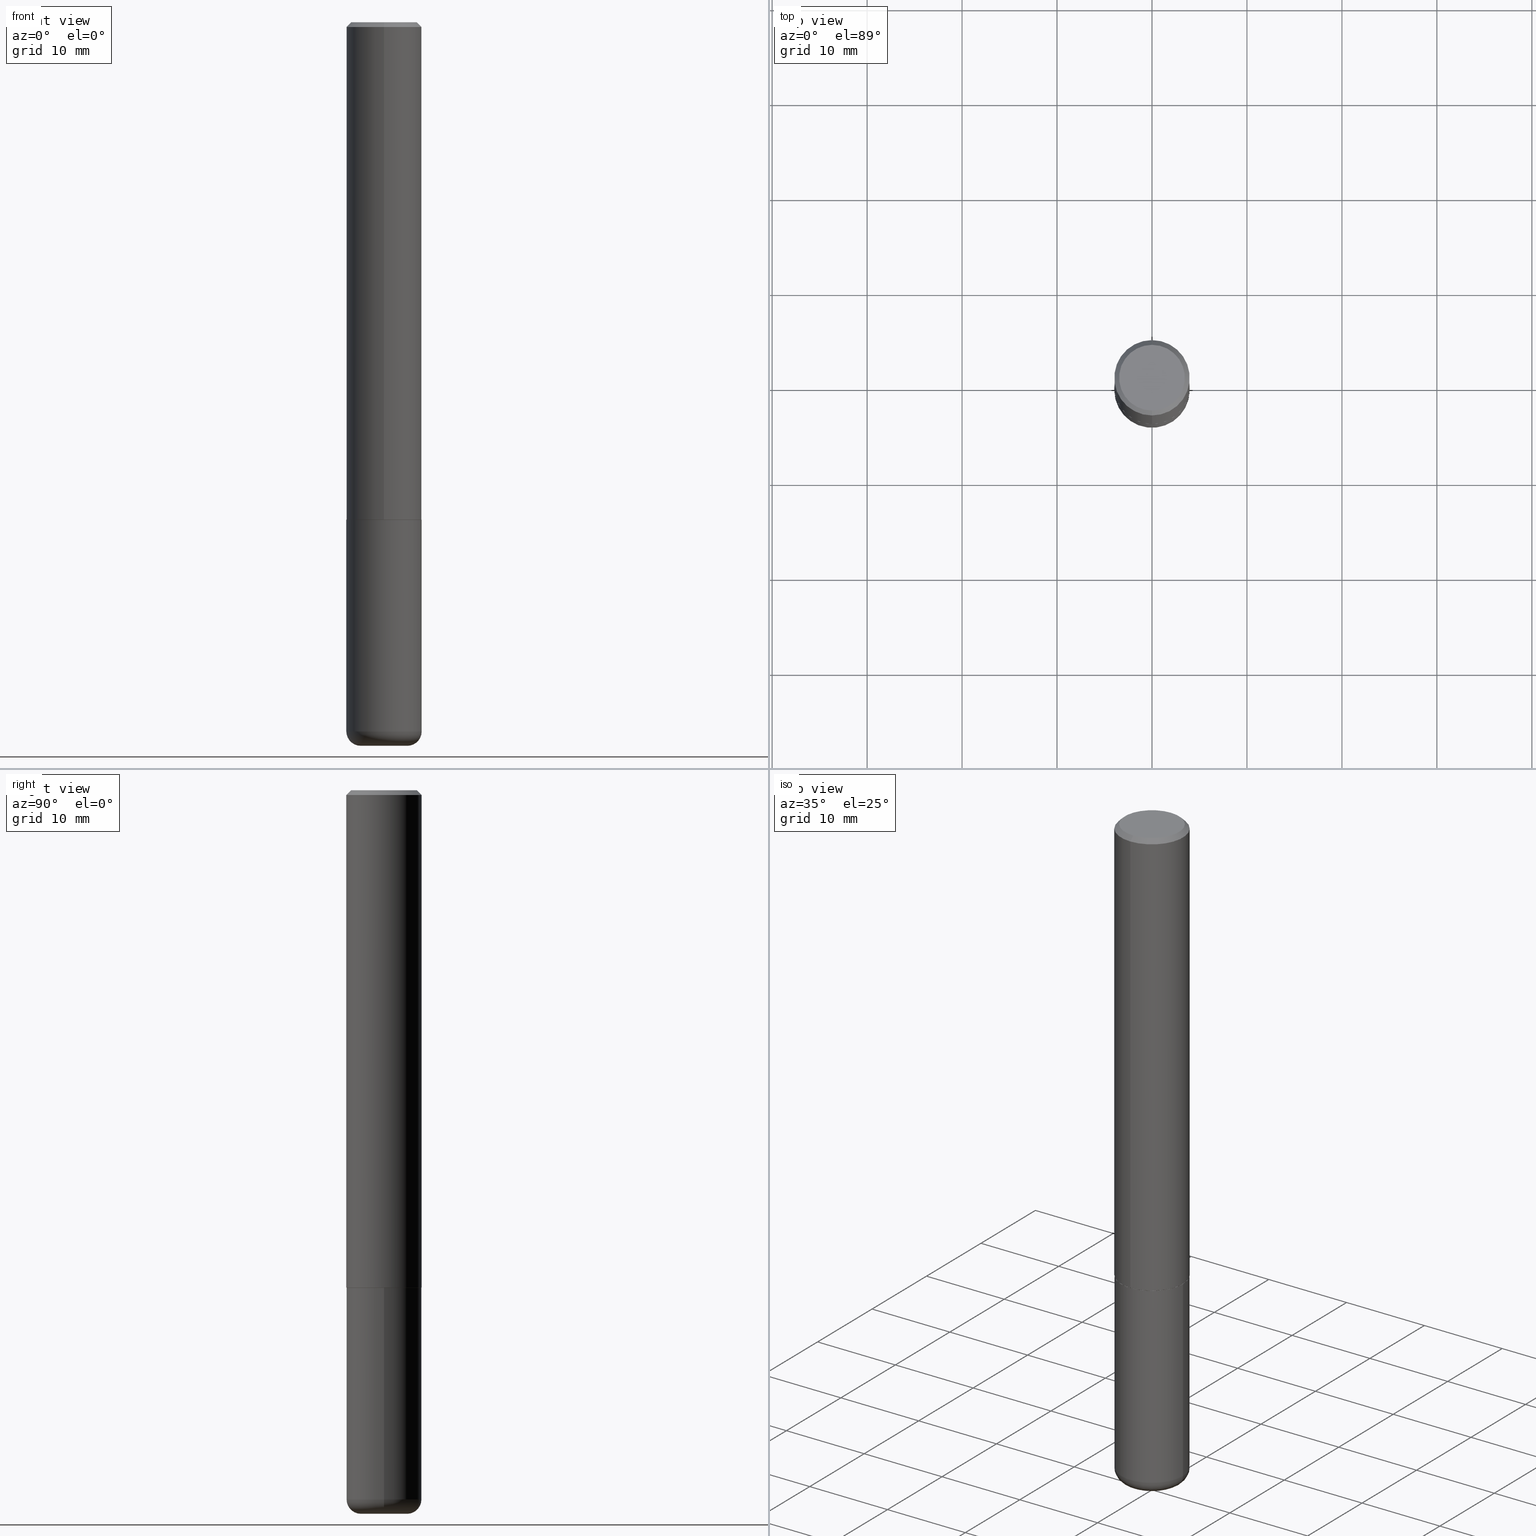
[diagram: canonical four-view strip — front | top / right | iso, engineering-drawing reading convention]
A machine part, canonical four-view strip (front | top / right | iso — engineering-drawing reading convention). The complete STEP part file that produces these views, byte-faithful:
ISO-10303-21;
HEADER;
FILE_DESCRIPTION (( 'STEP AP203' ),
    '1' );
FILE_NAME ('37464.STEP',
    '2024-03-02T01:57:05',
    ( '' ),
    ( '' ),
    'SwSTEP 2.0',
    'SolidWorks 2023',
    '' );
FILE_SCHEMA (( 'CONFIG_CONTROL_DESIGN' ));
ENDSEC;

DATA;
#1 = ORIENTED_EDGE ( 'NONE', *, *, #174, .F. ) ;
#2 = AXIS2_PLACEMENT_3D ( 'NONE', #51, #376, #232 ) ;
#3 = DIRECTION ( 'NONE',  ( -6.982962677686265922E-15, -1.000000000000000000, 3.519288880726909138E-15 ) ) ;
#4 = ORIENTED_EDGE ( 'NONE', *, *, #391, .F. ) ;
#5 = FACE_OUTER_BOUND ( 'NONE', #182, .T. ) ;
#6 = DIRECTION ( 'NONE',  ( -1.000000000000000000, 7.105427357600997914E-15, 0.000000000000000000 ) ) ;
#7 = ORIENTED_EDGE ( 'NONE', *, *, #170, .F. ) ;
#8 = PERSON ( 'UNSPECIFIED', 'UNSPECIFIED', 'UNSPECIFIED', ('UNSPECIFIED'), ('UNSPECIFIED'), ('UNSPECIFIED') ) ;
#9 = VECTOR ( 'NONE', #258, 39.37007874015748143 ) ;
#10 = EDGE_CURVE ( 'NONE', #139, #119, #46, .T. ) ;
#11 = EDGE_LOOP ( 'NONE', ( #386, #346 ) ) ;
#12 = LINE ( 'NONE', #205, #225 ) ;
#13 = APPLICATION_CONTEXT ( 'configuration controlled 3d designs of mechanical parts and assemblies' ) ;
#14 = DIRECTION ( 'NONE',  ( 1.000000000000000000, 0.000000000000000000, 0.000000000000000000 ) ) ;
#15 = ORIENTED_EDGE ( 'NONE', *, *, #368, .F. ) ;
#16 = VECTOR ( 'NONE', #265, 39.37007874015748854 ) ;
#17 = ORIENTED_EDGE ( 'NONE', *, *, #269, .F. ) ;
#18 = PLANE ( 'NONE',  #230 ) ;
#19 = AXIS2_PLACEMENT_3D ( 'NONE', #67, #316, #116 ) ;
#20 = DIRECTION ( 'NONE',  ( 1.000000000000000000, -6.982962677686274599E-15, 0.000000000000000000 ) ) ;
#21 = PERSON_AND_ORGANIZATION_ROLE ( 'design_owner' ) ;
#22 = ORIENTED_EDGE ( 'NONE', *, *, #49, .T. ) ;
#23 = ADVANCED_FACE ( 'NONE', ( #179 ), #403, .T. ) ;
#24 = PERSON_AND_ORGANIZATION_ROLE ( 'creator' ) ;
#25 = EDGE_CURVE ( 'NONE', #171, #153, #324, .T. ) ;
#26 = CARTESIAN_POINT ( 'NONE',  ( 5.040730454096381281E-29, -7.198553011844980434E-15, -2.061500000000000110 ) ) ;
#27 = PERSON_AND_ORGANIZATION ( #8, #98 ) ;
#28 = LINE ( 'NONE', #279, #48 ) ;
#29 = AXIS2_PLACEMENT_3D ( 'NONE', #335, #105, #360 ) ;
#30 = ORIENTED_EDGE ( 'NONE', *, *, #222, .F. ) ;
#31 = DIRECTION ( 'NONE',  ( -6.982962677686265922E-15, -1.000000000000000000, 3.496765431890250609E-15 ) ) ;
#32 = CARTESIAN_POINT ( 'NONE',  ( 0.1562499999999999722, -1.135604305458732800E-14, -2.940000000000000391 ) ) ;
#33 = FACE_OUTER_BOUND ( 'NONE', #81, .T. ) ;
#34 = CYLINDRICAL_SURFACE ( 'NONE', #47, 0.1562500000000000000 ) ;
#35 = CIRCLE ( 'NONE', #83, 0.05999999999999994227 ) ;
#36 = CC_DESIGN_PERSON_AND_ORGANIZATION_ASSIGNMENT ( #264, #402, ( #251 ) ) ;
#37 = DIRECTION ( 'NONE',  ( -2.445176063107630933E-29, 3.491900563592034843E-15, 1.000000000000000000 ) ) ;
#38 = DIRECTION ( 'NONE',  ( -2.445468806185136597E-29, 3.491481338843145583E-15, 1.000000000000000000 ) ) ;
#39 = PRODUCT_DEFINITION_SHAPE ( 'NONE', 'NONE',  #63 ) ;
#40 = LINE ( 'NONE', #173, #164 ) ;
#41 = AXIS2_PLACEMENT_3D ( 'NONE', #392, #129, #395 ) ;
#42 = CARTESIAN_POINT ( 'NONE',  ( 1.106670310946407312E-15, 0.1552499999999928104, -2.062500000000000888 ) ) ;
#43 = DIRECTION ( 'NONE',  ( 1.000000000000000000, -6.982962677686259611E-15, 0.000000000000000000 ) ) ;
#44 = LOCAL_TIME ( 20, 57, 5.000000000000000000, #183 ) ;
#45 = AXIS2_PLACEMENT_3D ( 'NONE', #110, #337, #43 ) ;
#46 = LINE ( 'NONE', #50, #16 ) ;
#47 = AXIS2_PLACEMENT_3D ( 'NONE', #118, #187, #160 ) ;
#48 = VECTOR ( 'NONE', #351, 39.37007874015748143 ) ;
#49 = EDGE_CURVE ( 'NONE', #153, #143, #133, .T. ) ;
#50 = CARTESIAN_POINT ( 'NONE',  ( -1.084104955710742475E-15, -0.1552500000000072156, -2.062500000000000000 ) ) ;
#51 = CARTESIAN_POINT ( 'NONE',  ( 5.040730454096381281E-29, -7.198553011844980434E-15, -2.061500000000000110 ) ) ;
#52 = PERSON_AND_ORGANIZATION_ROLE ( 'design_supplier' ) ;
#53 = ORIENTED_EDGE ( 'NONE', *, *, #56, .F. ) ;
#54 = ORIENTED_EDGE ( 'NONE', *, *, #56, .T. ) ;
#55 = ORIENTED_EDGE ( 'NONE', *, *, #235, .F. ) ;
#56 = EDGE_CURVE ( 'NONE', #371, #399, #349, .T. ) ;
#57 = AXIS2_PLACEMENT_3D ( 'NONE', #95, #37, #169 ) ;
#58 = CARTESIAN_POINT ( 'NONE',  ( 7.189678290184301639E-29, -1.026495513619884961E-14, -2.940000000000000391 ) ) ;
#59 = COORDINATED_UNIVERSAL_TIME_OFFSET ( 5, 0, .BEHIND. ) ;
#60 = DIRECTION ( 'NONE',  ( -2.445468806185136597E-29, 3.491481338843145583E-15, 1.000000000000000000 ) ) ;
#61 = AXIS2_PLACEMENT_3D ( 'NONE', #249, #38, #172 ) ;
#62 = DESIGN_CONTEXT ( 'detailed design', #13, 'design' ) ;
#63 = PRODUCT_DEFINITION ( 'UNKNOWN', '', #141, #62 ) ;
#64 = CARTESIAN_POINT ( 'NONE',  ( 4.890352126215269679E-31, -6.983801127184080238E-17, -0.02000000000000003511 ) ) ;
#65 = EDGE_CURVE ( 'NONE', #399, #371, #257, .T. ) ;
#66 = DIRECTION ( 'NONE',  ( 1.000000000000000000, -6.982962677686266711E-15, 4.876176775795936353E-29 ) ) ;
#67 = CARTESIAN_POINT ( 'NONE',  ( 4.890352126215269679E-31, -6.983801127184080238E-17, -0.02000000000000003511 ) ) ;
#68 = CONICAL_SURFACE ( 'NONE', #106, 0.1562500000000000000, 0.7853981633974469467 ) ;
#69 = VERTEX_POINT ( 'NONE', #216 ) ;
#70 = CIRCLE ( 'NONE', #176, 0.1362500000000001210 ) ;
#71 = ORIENTED_EDGE ( 'NONE', *, *, #261, .T. ) ;
#72 = LINE ( 'NONE', #175, #204 ) ;
#73 = CARTESIAN_POINT ( 'NONE',  ( 2.190428889620163364E-45, -3.128101894001013777E-31, -8.958164292007245599E-17 ) ) ;
#74 = ADVANCED_FACE ( 'NONE', ( #161 ), #68, .T. ) ;
#75 = ORIENTED_EDGE ( 'NONE', *, *, #191, .T. ) ;
#76 = AXIS2_PLACEMENT_3D ( 'NONE', #109, #377, #233 ) ;
#77 = ORIENTED_EDGE ( 'NONE', *, *, #222, .T. ) ;
#78 = COORDINATED_UNIVERSAL_TIME_OFFSET ( 5, 0, .BEHIND. ) ;
#79 = DIRECTION ( 'NONE',  ( 0.000000000000000000, 0.000000000000000000, 1.000000000000000000 ) ) ;
#80 = CLOSED_SHELL ( 'NONE', ( #198, #23, #132, #74, #287, #221, #378, #400 ) ) ;
#81 = EDGE_LOOP ( 'NONE', ( #223, #361, #53, #186 ) ) ;
#82 = PLANE ( 'NONE',  #372 ) ;
#83 = AXIS2_PLACEMENT_3D ( 'NONE', #285, #393, #6 ) ;
#84 = APPROVAL_ROLE ( '' ) ;
#85 = APPROVAL_STATUS ( 'not_yet_approved' ) ;
#86 = ORIENTED_EDGE ( 'NONE', *, *, #354, .F. ) ;
#87 = CIRCLE ( 'NONE', #341, 0.1552499999999999991 ) ;
#88 = DIRECTION ( 'NONE',  ( 6.982962677686265133E-15, 1.000000000000000000, -3.496765431890256920E-15 ) ) ;
#89 = EDGE_CURVE ( 'NONE', #143, #371, #218, .T. ) ;
#90 = CC_DESIGN_APPROVAL ( #383, ( #251 ) ) ;
#91 = APPROVAL_PERSON_ORGANIZATION ( #278, #398, #236 ) ;
#92 = SHAPE_DEFINITION_REPRESENTATION ( #39, #219 ) ;
#93 = ORIENTED_EDGE ( 'NONE', *, *, #321, .F. ) ;
#94 = ORIENTED_EDGE ( 'NONE', *, *, #290, .T. ) ;
#95 = CARTESIAN_POINT ( 'NONE',  ( 4.890352126215269679E-31, -6.983801127184080238E-17, -0.02000000000000003511 ) ) ;
#96 = CARTESIAN_POINT ( 'NONE',  ( 5.043175630159490166E-29, -7.202044912408575044E-15, -2.062500000000000444 ) ) ;
#97 = LOCAL_TIME ( 20, 57, 5.000000000000000000, #59 ) ;
#98 = ORGANIZATION ( 'UNSPECIFIED', 'UNSPECIFIED', '' ) ;
#99 = DIRECTION ( 'NONE',  ( -2.445176063107630933E-29, 3.491900563592034843E-15, 1.000000000000000000 ) ) ;
#100 = ORIENTED_EDGE ( 'NONE', *, *, #195, .T. ) ;
#101 = CARTESIAN_POINT ( 'NONE',  ( 7.189678290184301639E-29, -1.026495513619884961E-14, -2.940000000000000391 ) ) ;
#102 = CLOSED_SHELL ( 'NONE', ( #406, #310, #286, #138, #260, #339 ) ) ;
#103 = AXIS2_PLACEMENT_3D ( 'NONE', #200, #259, #327 ) ;
#104 = CC_DESIGN_PERSON_AND_ORGANIZATION_ASSIGNMENT ( #344, #52, ( #141 ) ) ;
#105 = DIRECTION ( 'NONE',  ( 2.438088387897960049E-29, -3.491481338843145188E-15, -1.000000000000000000 ) ) ;
#106 = AXIS2_PLACEMENT_3D ( 'NONE', #64, #417, #126 ) ;
#107 = EDGE_LOOP ( 'NONE', ( #342, #350, #374, #86 ) ) ;
#108 = ORIENTED_EDGE ( 'NONE', *, *, #368, .T. ) ;
#109 = CARTESIAN_POINT ( 'NONE',  ( 7.336406418555409790E-29, -1.047444401652943635E-14, -3.000000000000000444 ) ) ;
#110 = CARTESIAN_POINT ( 'NONE',  ( 7.336406418555409790E-29, -1.047444401652943635E-14, -3.000000000000000444 ) ) ;
#111 = DIMENSIONAL_EXPONENTS ( 1.000000000000000000, 0.000000000000000000, 0.000000000000000000, 0.000000000000000000, 0.000000000000000000, 0.000000000000000000, 0.000000000000000000 ) ;
#112 = ORIENTED_EDGE ( 'NONE', *, *, #242, .T. ) ;
#113 = APPLICATION_PROTOCOL_DEFINITION ( 'international standard', 'config_control_design', 1994, #369 ) ;
#114 = VECTOR ( 'NONE', #253, 39.37007874015748143 ) ;
#115 = DIRECTION ( 'NONE',  ( -2.445468806185136597E-29, 3.491481338843145583E-15, 1.000000000000000000 ) ) ;
#116 = DIRECTION ( 'NONE',  ( -6.982962677686265133E-15, -1.000000000000000000, 3.496765431890256920E-15 ) ) ;
#117 = ORIENTED_EDGE ( 'NONE', *, *, #167, .T. ) ;
#118 = CARTESIAN_POINT ( 'NONE',  ( 0.000000000000000000, 0.000000000000000000, 0.000000000000000000 ) ) ;
#119 = VERTEX_POINT ( 'NONE', #275 ) ;
#120 = ORIENTED_EDGE ( 'NONE', *, *, #353, .T. ) ;
#121 = AXIS2_PLACEMENT_3D ( 'NONE', #332, #134, #256 ) ;
#122 = CYLINDRICAL_SURFACE ( 'NONE', #211, 0.1562500000000001388 ) ;
#123 = AXIS2_PLACEMENT_3D ( 'NONE', #322, #162, #66 ) ;
#124 = DIRECTION ( 'NONE',  ( -6.982962677686265922E-15, -1.000000000000000000, 3.491900563592035238E-15 ) ) ;
#125 = APPROVAL_PERSON_ORGANIZATION ( #270, #383, #289 ) ;
#126 = DIRECTION ( 'NONE',  ( 6.982962677686265133E-15, 1.000000000000000000, -3.496765431890256920E-15 ) ) ;
#127 =( CONVERSION_BASED_UNIT ( 'INCH', #166 ) LENGTH_UNIT ( ) NAMED_UNIT ( #111 ) );
#128 = ORIENTED_EDGE ( 'NONE', *, *, #65, .F. ) ;
#129 = DIRECTION ( 'NONE',  ( -2.445468806185136597E-29, 3.491481338843145583E-15, 1.000000000000000000 ) ) ;
#130 = AXIS2_PLACEMENT_3D ( 'NONE', #158, #411, #163 ) ;
#131 = EDGE_LOOP ( 'NONE', ( #381, #100 ) ) ;
#132 = ADVANCED_FACE ( 'NONE', ( #184 ), #367, .T. ) ;
#133 = CIRCLE ( 'NONE', #408, 0.05999999999999994227 ) ;
#134 = DIRECTION ( 'NONE',  ( -2.445468806185136597E-29, 3.491481338843145583E-15, 1.000000000000000000 ) ) ;
#135 =( LENGTH_UNIT ( ) NAMED_UNIT ( * ) SI_UNIT ( $, .METRE. ) );
#136 = DIRECTION ( 'NONE',  ( -6.982962677686266711E-15, -1.000000000000000000, 3.491481338843145583E-15 ) ) ;
#137 = CONICAL_SURFACE ( 'NONE', #217, 0.1552499999999999991, 0.7853981633974141952 ) ;
#138 = ADVANCED_FACE ( 'NONE', ( #152 ), #34, .T. ) ;
#139 = VERTEX_POINT ( 'NONE', #318 ) ;
#140 = PERSON_AND_ORGANIZATION ( #8, #98 ) ;
#141 = PRODUCT_DEFINITION_FORMATION_WITH_SPECIFIED_SOURCE ( 'ANY', '', #388, .NOT_KNOWN. ) ;
#142 = DATE_TIME_ROLE ( 'creation_date' ) ;
#143 = VERTEX_POINT ( 'NONE', #32 ) ;
#144 = TOROIDAL_SURFACE ( 'NONE', #410, 0.09625000000000000222, 0.05999999999999995615 ) ;
#145 = DATE_TIME_ROLE ( 'classification_date' ) ;
#146 = ORIENTED_EDGE ( 'NONE', *, *, #354, .T. ) ;
#147 = DIRECTION ( 'NONE',  ( 1.000000000000000000, -6.982962677686269077E-15, 0.000000000000000000 ) ) ;
#148 = UNCERTAINTY_MEASURE_WITH_UNIT (LENGTH_MEASURE( 1.000000000000000082E-05 ), #127, 'distance_accuracy_value', 'NONE');
#149 = DIRECTION ( 'NONE',  ( -2.445176063107630933E-29, 3.491900563592034843E-15, 1.000000000000000000 ) ) ;
#150 = LOCAL_TIME ( 20, 57, 5.000000000000000000, #347 ) ;
#151 = CIRCLE ( 'NONE', #41, 0.09625000000000000222 ) ;
#152 = FACE_OUTER_BOUND ( 'NONE', #359, .T. ) ;
#153 = VERTEX_POINT ( 'NONE', #155 ) ;
#154 = CARTESIAN_POINT ( 'NONE',  ( 5.043779412756844791E-29, -7.201180261363988578E-15, -2.062500000000000000 ) ) ;
#155 = CARTESIAN_POINT ( 'NONE',  ( 0.09625000000000000222, -1.114655417425673968E-14, -3.000000000000000444 ) ) ;
#156 = DIRECTION ( 'NONE',  ( 1.000000000000000000, -6.982962677686269077E-15, 0.000000000000000000 ) ) ;
#157 = CARTESIAN_POINT ( 'NONE',  ( 9.514286648347545493E-16, 0.1362500000000001210, -5.205622732494513937E-16 ) ) ;
#158 = CARTESIAN_POINT ( 'NONE',  ( 5.043175630159490166E-29, -7.202044912408575044E-15, -2.062500000000000444 ) ) ;
#159 = APPROVAL_STATUS ( 'not_yet_approved' ) ;
#160 = DIRECTION ( 'NONE',  ( 1.000000000000000000, -6.982962677686266711E-15, 4.876176775795936353E-29 ) ) ;
#161 = FACE_OUTER_BOUND ( 'NONE', #231, .T. ) ;
#162 = DIRECTION ( 'NONE',  ( -2.445468806185136597E-29, 3.491481338843145583E-15, 1.000000000000000000 ) ) ;
#163 = DIRECTION ( 'NONE',  ( -6.982962677686265922E-15, -1.000000000000000000, 3.519288880726909138E-15 ) ) ;
#164 = VECTOR ( 'NONE', #294, 39.37007874015748143 ) ;
#165 = VERTEX_POINT ( 'NONE', #282 ) ;
#166 = LENGTH_MEASURE_WITH_UNIT ( LENGTH_MEASURE( 0.02539999999999999897 ), #135 );
#167 = EDGE_CURVE ( 'NONE', #171, #297, #35, .T. ) ;
#168 =( NAMED_UNIT ( * ) SI_UNIT ( $, .STERADIAN. ) SOLID_ANGLE_UNIT ( ) );
#169 = DIRECTION ( 'NONE',  ( -6.982962677686265133E-15, -1.000000000000000000, 3.496765431890256920E-15 ) ) ;
#170 = EDGE_CURVE ( 'NONE', #165, #188, #295, .T. ) ;
#171 = VERTEX_POINT ( 'NONE', #252 ) ;
#172 = DIRECTION ( 'NONE',  ( 1.000000000000000000, -6.982962677686262766E-15, 0.000000000000000000 ) ) ;
#173 = CARTESIAN_POINT ( 'NONE',  ( -0.1562500000000000000, 1.110223024625156540E-15, -7.685836078523291160E-30 ) ) ;
#174 = EDGE_CURVE ( 'NONE', #268, #139, #87, .T. ) ;
#175 = CARTESIAN_POINT ( 'NONE',  ( 1.103117597267605822E-15, 0.1552499999999928104, -2.062500000000000888 ) ) ;
#176 = AXIS2_PLACEMENT_3D ( 'NONE', #384, #254, #364 ) ;
#177 = CARTESIAN_POINT ( 'NONE',  ( 1.021258291611617059E-15, 0.1362500000000001210, -5.653530947094876156E-16 ) ) ;
#178 = CALENDAR_DATE ( 2024, 1, 3 ) ;
#179 = FACE_OUTER_BOUND ( 'NONE', #207, .T. ) ;
#180 = DIRECTION ( 'NONE',  ( -6.982962677686265922E-15, -1.000000000000000000, 3.491900563592034843E-15 ) ) ;
#181 = EDGE_LOOP ( 'NONE', ( #108, #71, #234, #348 ) ) ;
#182 = EDGE_LOOP ( 'NONE', ( #227, #237, #306, #4 ) ) ;
#183 = COORDINATED_UNIVERSAL_TIME_OFFSET ( 5, 0, .BEHIND. ) ;
#184 = FACE_OUTER_BOUND ( 'NONE', #107, .T. ) ;
#185 = CIRCLE ( 'NONE', #2, 0.1562500000000002776 ) ;
#186 = ORIENTED_EDGE ( 'NONE', *, *, #89, .F. ) ;
#187 = DIRECTION ( 'NONE',  ( -2.445468806185136597E-29, 3.491481338843145583E-15, 1.000000000000000000 ) ) ;
#188 = VERTEX_POINT ( 'NONE', #292 ) ;
#189 = DIRECTION ( 'NONE',  ( 2.445176063107630653E-29, -3.491900563592034843E-15, -1.000000000000000000 ) ) ;
#190 = AXIS2_PLACEMENT_3D ( 'NONE', #352, #79, #14 ) ;
#191 = EDGE_CURVE ( 'NONE', #153, #171, #151, .T. ) ;
#192 = FACE_OUTER_BOUND ( 'NONE', #203, .T. ) ;
#193 = CARTESIAN_POINT ( 'NONE',  ( -0.1562499999999999722, -9.154732111573693074E-15, -2.940000000000000391 ) ) ;
#194 = CC_DESIGN_DATE_AND_TIME_ASSIGNMENT ( #308, #145, ( #251 ) ) ;
#195 = EDGE_CURVE ( 'NONE', #165, #345, #302, .T. ) ;
#196 = ORIENTED_EDGE ( 'NONE', *, *, #300, .T. ) ;
#197 = AXIS2_PLACEMENT_3D ( 'NONE', #215, #60, #156 ) ;
#198 = ADVANCED_FACE ( 'NONE', ( #370 ), #387, .T. ) ;
#199 = ORIENTED_EDGE ( 'NONE', *, *, #242, .F. ) ;
#200 = CARTESIAN_POINT ( 'NONE',  ( 5.043175630159490166E-29, -7.202044912408575044E-15, -2.062500000000000444 ) ) ;
#201 = CC_DESIGN_PERSON_AND_ORGANIZATION_ASSIGNMENT ( #238, #21, ( #388 ) ) ;
#202 = PLANE ( 'NONE',  #76 ) ;
#203 = EDGE_LOOP ( 'NONE', ( #415, #303, #112, #267 ) ) ;
#204 = VECTOR ( 'NONE', #326, 39.37007874015748854 ) ;
#205 = CARTESIAN_POINT ( 'NONE',  ( 1.110223024625157329E-15, 0.1562500000000001388, -5.456094630612559989E-16 ) ) ;
#206 = PERSON_AND_ORGANIZATION ( #8, #98 ) ;
#207 = EDGE_LOOP ( 'NONE', ( #196, #120, #243, #199 ) ) ;
#208 = FACE_OUTER_BOUND ( 'NONE', #131, .T. ) ;
#209 = CALENDAR_DATE ( 2024, 1, 3 ) ;
#210 = APPLICATION_PROTOCOL_DEFINITION ( 'international standard', 'config_control_design', 1994, #13 ) ;
#211 = AXIS2_PLACEMENT_3D ( 'NONE', #220, #288, #124 ) ;
#212 = DATE_AND_TIME ( #178, #150 ) ;
#213 = EDGE_CURVE ( 'NONE', #188, #272, #390, .T. ) ;
#214 = MANIFOLD_SOLID_BREP ( 'Body-Move/Copy2[1]', #102 ) ;
#215 = CARTESIAN_POINT ( 'NONE',  ( 5.043779412756844791E-29, -7.201180261363988578E-15, -2.062500000000000000 ) ) ;
#216 = CARTESIAN_POINT ( 'NONE',  ( 1.110223024625183362E-15, 0.1562499999999930611, -2.061500000000000554 ) ) ;
#217 = AXIS2_PLACEMENT_3D ( 'NONE', #96, #336, #366 ) ;
#218 = LINE ( 'NONE', #356, #416 ) ;
#219 = ADVANCED_BREP_SHAPE_REPRESENTATION ( '37464', ( #214, #365, #190 ), #250 ) ;
#220 = CARTESIAN_POINT ( 'NONE',  ( 0.000000000000000000, 0.000000000000000000, 0.000000000000000000 ) ) ;
#221 = ADVANCED_FACE ( 'NONE', ( #5 ), #137, .T. ) ;
#222 = EDGE_CURVE ( 'NONE', #297, #143, #266, .T. ) ;
#223 = ORIENTED_EDGE ( 'NONE', *, *, #269, .T. ) ;
#224 = ORIENTED_EDGE ( 'NONE', *, *, #65, .T. ) ;
#225 = VECTOR ( 'NONE', #323, 39.37007874015748143 ) ;
#226 = EDGE_LOOP ( 'NONE', ( #75, #117, #17, #246 ) ) ;
#227 = ORIENTED_EDGE ( 'NONE', *, *, #261, .F. ) ;
#228 = CARTESIAN_POINT ( 'NONE',  ( 5.043175630159489045E-29, -7.202044912408573467E-15, -2.062500000000000000 ) ) ;
#229 = APPROVAL_STATUS ( 'not_yet_approved' ) ;
#230 = AXIS2_PLACEMENT_3D ( 'NONE', #157, #189, #319 ) ;
#231 = EDGE_LOOP ( 'NONE', ( #7, #93, #146, #94 ) ) ;
#232 = DIRECTION ( 'NONE',  ( -6.982962677686265922E-15, -1.000000000000000000, 3.496765431890250609E-15 ) ) ;
#233 = DIRECTION ( 'NONE',  ( -1.000000000000000000, 6.982962677686265922E-15, -4.876176775795935793E-29 ) ) ;
#234 = ORIENTED_EDGE ( 'NONE', *, *, #300, .F. ) ;
#235 = EDGE_CURVE ( 'NONE', #297, #399, #40, .T. ) ;
#236 = APPROVAL_ROLE ( '' ) ;
#237 = ORIENTED_EDGE ( 'NONE', *, *, #174, .T. ) ;
#238 = PERSON_AND_ORGANIZATION ( #8, #98 ) ;
#239 = CIRCLE ( 'NONE', #19, 0.1562500000000000000 ) ;
#240 = FACE_OUTER_BOUND ( 'NONE', #226, .T. ) ;
#241 = DATE_AND_TIME ( #407, #44 ) ;
#242 = EDGE_CURVE ( 'NONE', #119, #188, #409, .T. ) ;
#243 = ORIENTED_EDGE ( 'NONE', *, *, #213, .F. ) ;
#244 = DIRECTION ( 'NONE',  ( -2.445468806185136877E-29, 3.491481338843145188E-15, 1.000000000000000000 ) ) ;
#245 = FACE_OUTER_BOUND ( 'NONE', #418, .T. ) ;
#246 = ORIENTED_EDGE ( 'NONE', *, *, #49, .F. ) ;
#247 = CC_DESIGN_PERSON_AND_ORGANIZATION_ASSIGNMENT ( #140, #262, ( #141 ) ) ;
#248 = AXIS2_PLACEMENT_3D ( 'NONE', #26, #149, #31 ) ;
#249 = CARTESIAN_POINT ( 'NONE',  ( 7.189678290184301639E-29, -1.026495513619884961E-14, -2.940000000000000391 ) ) ;
#250 =( GEOMETRIC_REPRESENTATION_CONTEXT ( 3 ) GLOBAL_UNCERTAINTY_ASSIGNED_CONTEXT ( ( #148 ) ) GLOBAL_UNIT_ASSIGNED_CONTEXT ( ( #127, #389, #168 ) ) REPRESENTATION_CONTEXT ( 'NONE', 'WORKASPACE' ) );
#251 = SECURITY_CLASSIFICATION ( '', '', #305 ) ;
#252 = CARTESIAN_POINT ( 'NONE',  ( -0.09625000000000000222, -9.472639372467016689E-15, -3.000000000000000444 ) ) ;
#253 = DIRECTION ( 'NONE',  ( -2.445176063107631214E-29, 3.491900563592034843E-15, 1.000000000000000000 ) ) ;
#254 = DIRECTION ( 'NONE',  ( -2.445176063107630933E-29, 3.491900563592034843E-15, 1.000000000000000000 ) ) ;
#255 = DIRECTION ( 'NONE',  ( -2.445176063107630933E-29, 3.491900563592034843E-15, 1.000000000000000000 ) ) ;
#256 = DIRECTION ( 'NONE',  ( 1.000000000000000000, -6.982962677686262766E-15, 0.000000000000000000 ) ) ;
#257 = CIRCLE ( 'NONE', #197, 0.1562500000000000000 ) ;
#258 = DIRECTION ( 'NONE',  ( -4.851104656540957175E-15, -0.7071067811865490160, -0.7071067811865460184 ) ) ;
#259 = DIRECTION ( 'NONE',  ( -2.445176063107630933E-29, 3.491900563592034843E-15, 1.000000000000000000 ) ) ;
#260 = ADVANCED_FACE ( 'NONE', ( #394 ), #325, .T. ) ;
#261 = EDGE_CURVE ( 'NONE', #268, #69, #72, .T. ) ;
#262 = PERSON_AND_ORGANIZATION_ROLE ( 'creator' ) ;
#263 = FACE_OUTER_BOUND ( 'NONE', #11, .T. ) ;
#264 = PERSON_AND_ORGANIZATION ( #8, #98 ) ;
#265 = DIRECTION ( 'NONE',  ( -4.937700262164378437E-15, -0.7071067811865208164, 0.7071067811865739960 ) ) ;
#266 = CIRCLE ( 'NONE', #121, 0.1562500000000000000 ) ;
#267 = ORIENTED_EDGE ( 'NONE', *, *, #290, .F. ) ;
#268 = VERTEX_POINT ( 'NONE', #42 ) ;
#269 = EDGE_CURVE ( 'NONE', #143, #297, #363, .T. ) ;
#270 = PERSON_AND_ORGANIZATION ( #8, #98 ) ;
#271 = CARTESIAN_POINT ( 'NONE',  ( 0.000000000000000000, 0.000000000000000000, 0.000000000000000000 ) ) ;
#272 = VERTEX_POINT ( 'NONE', #414 ) ;
#273 = LOCAL_TIME ( 20, 57, 5.000000000000000000, #78 ) ;
#274 = COORDINATED_UNIVERSAL_TIME_OFFSET ( 5, 0, .BEHIND. ) ;
#275 = CARTESIAN_POINT ( 'NONE',  ( -1.091087918388430659E-15, -0.1562500000000074940, -2.061499999999999666 ) ) ;
#276 = EDGE_LOOP ( 'NONE', ( #357, #307, #22, #30 ) ) ;
#277 = AXIS2_PLACEMENT_3D ( 'NONE', #154, #115, #147 ) ;
#278 = PERSON_AND_ORGANIZATION ( #8, #98 ) ;
#279 = CARTESIAN_POINT ( 'NONE',  ( 1.091087918388479568E-15, 0.1562499999999999445, -0.02000000000000057981 ) ) ;
#280 = EDGE_LOOP ( 'NONE', ( #54, #224 ) ) ;
#281 = DIRECTION ( 'NONE',  ( -2.445468806185136597E-29, 3.491481338843145583E-15, 1.000000000000000000 ) ) ;
#282 = CARTESIAN_POINT ( 'NONE',  ( -1.003347832174086672E-15, -0.1362500000000001210, 3.861898088693426789E-16 ) ) ;
#283 = CYLINDRICAL_SURFACE ( 'NONE', #123, 0.1562500000000000000 ) ;
#284 = CALENDAR_DATE ( 2024, 1, 3 ) ;
#285 = CARTESIAN_POINT ( 'NONE',  ( -0.09625000000000000222, -9.581057753029751986E-15, -2.940000000000000391 ) ) ;
#286 = ADVANCED_FACE ( 'NONE', ( #315 ), #320, .F. ) ;
#287 = ADVANCED_FACE ( 'NONE', ( #192 ), #122, .T. ) ;
#288 = DIRECTION ( 'NONE',  ( -2.445176063107630933E-29, 3.491900563592034843E-15, 1.000000000000000000 ) ) ;
#289 = APPROVAL_ROLE ( '' ) ;
#290 = EDGE_CURVE ( 'NONE', #272, #188, #239, .T. ) ;
#291 = CC_DESIGN_APPROVAL ( #338, ( #141 ) ) ;
#292 = CARTESIAN_POINT ( 'NONE',  ( -1.071952812151801215E-15, -0.1562500000000000833, -0.01999999999999948694 ) ) ;
#293 = DIRECTION ( 'NONE',  ( 1.000000000000000000, -6.982962677686265922E-15, 4.883557194083112340E-29 ) ) ;
#294 = DIRECTION ( 'NONE',  ( -2.445468806185136877E-29, 3.491481338843145188E-15, 1.000000000000000000 ) ) ;
#295 = LINE ( 'NONE', #397, #9 ) ;
#296 = LOCAL_TIME ( 20, 57, 5.000000000000000000, #274 ) ;
#297 = VERTEX_POINT ( 'NONE', #193 ) ;
#298 = CARTESIAN_POINT ( 'NONE',  ( 5.043175630159490166E-29, -7.202044912408575044E-15, -2.062500000000000444 ) ) ;
#299 = CARTESIAN_POINT ( 'NONE',  ( 0.09625000000000000222, -1.093706529392615137E-14, -2.940000000000000391 ) ) ;
#300 = EDGE_CURVE ( 'NONE', #119, #69, #333, .T. ) ;
#301 = DIRECTION ( 'NONE',  ( -6.982962677686265922E-15, -1.000000000000000000, 3.491900563592034843E-15 ) ) ;
#302 = CIRCLE ( 'NONE', #309, 0.1362500000000001210 ) ;
#303 = ORIENTED_EDGE ( 'NONE', *, *, #391, .T. ) ;
#304 = MECHANICAL_CONTEXT ( 'NONE', #369, 'mechanical' ) ;
#305 = SECURITY_CLASSIFICATION_LEVEL ( 'unclassified' ) ;
#306 = ORIENTED_EDGE ( 'NONE', *, *, #10, .T. ) ;
#307 = ORIENTED_EDGE ( 'NONE', *, *, #25, .T. ) ;
#308 = DATE_AND_TIME ( #209, #273 ) ;
#309 = AXIS2_PLACEMENT_3D ( 'NONE', #73, #99, #301 ) ;
#310 = ADVANCED_FACE ( 'NONE', ( #240 ), #144, .T. ) ;
#311 = CALENDAR_DATE ( 2024, 1, 3 ) ;
#312 = PRODUCT_RELATED_PRODUCT_CATEGORY ( 'detail', '', ( #388 ) ) ;
#313 = CARTESIAN_POINT ( 'NONE',  ( 4.890352126215269679E-31, -6.983801127184080238E-17, -0.02000000000000003511 ) ) ;
#314 = CIRCLE ( 'NONE', #130, 0.1552499999999999991 ) ;
#315 = FACE_OUTER_BOUND ( 'NONE', #280, .T. ) ;
#316 = DIRECTION ( 'NONE',  ( -2.445176063107630933E-29, 3.491900563592034843E-15, 1.000000000000000000 ) ) ;
#317 = APPROVAL_DATE_TIME ( #358, #383 ) ;
#318 = CARTESIAN_POINT ( 'NONE',  ( -1.084104955710742475E-15, -0.1552500000000072156, -2.062500000000000000 ) ) ;
#319 = DIRECTION ( 'NONE',  ( 6.982962677686265922E-15, 1.000000000000000000, -3.491900563592034843E-15 ) ) ;
#320 = PLANE ( 'NONE',  #29 ) ;
#321 = EDGE_CURVE ( 'NONE', #345, #165, #70, .T. ) ;
#322 = CARTESIAN_POINT ( 'NONE',  ( 0.000000000000000000, 0.000000000000000000, 0.000000000000000000 ) ) ;
#323 = DIRECTION ( 'NONE',  ( -2.445176063107631214E-29, 3.491900563592034843E-15, 1.000000000000000000 ) ) ;
#324 = CIRCLE ( 'NONE', #45, 0.09625000000000000222 ) ;
#325 = TOROIDAL_SURFACE ( 'NONE', #396, 0.09625000000000000222, 0.05999999999999995615 ) ;
#326 = DIRECTION ( 'NONE',  ( 5.024295867787889629E-15, 0.7071067811865257013, 0.7071067811865691111 ) ) ;
#327 = DIRECTION ( 'NONE',  ( -6.982962677686265922E-15, -1.000000000000000000, 3.519288880726909138E-15 ) ) ;
#328 = CC_DESIGN_SECURITY_CLASSIFICATION ( #251, ( #141 ) ) ;
#329 = CC_DESIGN_APPROVAL ( #398, ( #63 ) ) ;
#330 = DIRECTION ( 'NONE',  ( -2.445468806185136597E-29, 3.491481338843145583E-15, 1.000000000000000000 ) ) ;
#331 = DIRECTION ( 'NONE',  ( 1.000000000000000000, -6.982962677686265922E-15, 4.883557194083112340E-29 ) ) ;
#332 = CARTESIAN_POINT ( 'NONE',  ( 7.189678290184301639E-29, -1.026495513619884961E-14, -2.940000000000000391 ) ) ;
#333 = CIRCLE ( 'NONE', #248, 0.1562500000000002776 ) ;
#334 = CARTESIAN_POINT ( 'NONE',  ( -1.091087918388479962E-15, -0.1562500000000001388, 5.456094630612559989E-16 ) ) ;
#335 = CARTESIAN_POINT ( 'NONE',  ( 5.043779412756844791E-29, -7.201180261363988578E-15, -2.062500000000000000 ) ) ;
#336 = DIRECTION ( 'NONE',  ( -2.445176063107630933E-29, 3.491900563592034843E-15, 1.000000000000000000 ) ) ;
#337 = DIRECTION ( 'NONE',  ( -2.445468806185136597E-29, 3.491481338843145583E-15, 1.000000000000000000 ) ) ;
#338 = APPROVAL ( #85, 'UNSPECIFIED' ) ;
#339 = ADVANCED_FACE ( 'NONE', ( #263 ), #202, .T. ) ;
#340 = AXIS2_PLACEMENT_3D ( 'NONE', #271, #380, #404 ) ;
#341 = AXIS2_PLACEMENT_3D ( 'NONE', #298, #255, #3 ) ;
#342 = ORIENTED_EDGE ( 'NONE', *, *, #195, .F. ) ;
#343 = DIRECTION ( 'NONE',  ( -2.445176063107630653E-29, 3.491900563592034843E-15, 1.000000000000000000 ) ) ;
#344 = PERSON_AND_ORGANIZATION ( #8, #98 ) ;
#345 = VERTEX_POINT ( 'NONE', #177 ) ;
#346 = ORIENTED_EDGE ( 'NONE', *, *, #25, .F. ) ;
#347 = COORDINATED_UNIVERSAL_TIME_OFFSET ( 5, 0, .BEHIND. ) ;
#348 = ORIENTED_EDGE ( 'NONE', *, *, #10, .F. ) ;
#349 = CIRCLE ( 'NONE', #277, 0.1562500000000000000 ) ;
#350 = ORIENTED_EDGE ( 'NONE', *, *, #170, .T. ) ;
#351 = DIRECTION ( 'NONE',  ( 4.937700262164540942E-15, 0.7071067811865441310, -0.7071067811865509034 ) ) ;
#352 = CARTESIAN_POINT ( 'NONE',  ( 0.000000000000000000, 0.000000000000000000, 0.000000000000000000 ) ) ;
#353 = EDGE_CURVE ( 'NONE', #69, #272, #12, .T. ) ;
#354 = EDGE_CURVE ( 'NONE', #345, #272, #28, .T. ) ;
#355 = DIRECTION ( 'NONE',  ( 2.445176063107630933E-29, -3.491900563592034843E-15, -1.000000000000000000 ) ) ;
#356 = CARTESIAN_POINT ( 'NONE',  ( 0.1562500000000000000, -1.091087918388479174E-15, 7.619026212181150377E-30 ) ) ;
#357 = ORIENTED_EDGE ( 'NONE', *, *, #167, .F. ) ;
#358 = DATE_AND_TIME ( #284, #97 ) ;
#359 = EDGE_LOOP ( 'NONE', ( #55, #77, #412, #128 ) ) ;
#360 = DIRECTION ( 'NONE',  ( -1.000000000000000000, 6.982962677686265922E-15, -4.876176775795935793E-29 ) ) ;
#361 = ORIENTED_EDGE ( 'NONE', *, *, #235, .T. ) ;
#362 = CC_DESIGN_PERSON_AND_ORGANIZATION_ASSIGNMENT ( #27, #24, ( #63 ) ) ;
#363 = CIRCLE ( 'NONE', #61, 0.1562500000000000000 ) ;
#364 = DIRECTION ( 'NONE',  ( -6.982962677686265922E-15, -1.000000000000000000, 3.491900563592034843E-15 ) ) ;
#365 = MANIFOLD_SOLID_BREP ( 'Body-Move/Copy2[2]', #80 ) ;
#366 = DIRECTION ( 'NONE',  ( -6.982962677686265922E-15, -1.000000000000000000, 3.519288880726909138E-15 ) ) ;
#367 = CONICAL_SURFACE ( 'NONE', #401, 0.1562500000000000000, 0.7853981633974469467 ) ;
#368 = EDGE_CURVE ( 'NONE', #139, #268, #314, .T. ) ;
#369 = APPLICATION_CONTEXT ( 'configuration controlled 3d designs of mechanical parts and assemblies' ) ;
#370 = FACE_OUTER_BOUND ( 'NONE', #181, .T. ) ;
#371 = VERTEX_POINT ( 'NONE', #385 ) ;
#372 = AXIS2_PLACEMENT_3D ( 'NONE', #228, #343, #180 ) ;
#373 = APPROVAL_DATE_TIME ( #212, #338 ) ;
#374 = ORIENTED_EDGE ( 'NONE', *, *, #213, .T. ) ;
#375 = CARTESIAN_POINT ( 'NONE',  ( -0.1562500000000000000, -7.622844674156262556E-15, -2.062500000000000000 ) ) ;
#376 = DIRECTION ( 'NONE',  ( -2.445176063107630933E-29, 3.491900563592034843E-15, 1.000000000000000000 ) ) ;
#377 = DIRECTION ( 'NONE',  ( 2.438088387897960049E-29, -3.491481338843145188E-15, -1.000000000000000000 ) ) ;
#378 = ADVANCED_FACE ( 'NONE', ( #245 ), #82, .F. ) ;
#379 = DATE_AND_TIME ( #311, #296 ) ;
#380 = DIRECTION ( 'NONE',  ( -2.445176063107630933E-29, 3.491900563592034843E-15, 1.000000000000000000 ) ) ;
#381 = ORIENTED_EDGE ( 'NONE', *, *, #321, .T. ) ;
#382 = APPROVAL_DATE_TIME ( #379, #398 ) ;
#383 = APPROVAL ( #159, 'UNSPECIFIED' ) ;
#384 = CARTESIAN_POINT ( 'NONE',  ( 2.190428889620163364E-45, -3.128101894001013777E-31, -8.958164292007245599E-17 ) ) ;
#385 = CARTESIAN_POINT ( 'NONE',  ( 0.1562500000000000000, -8.292268179752468540E-15, -2.062500000000000000 ) ) ;
#386 = ORIENTED_EDGE ( 'NONE', *, *, #191, .F. ) ;
#387 = CONICAL_SURFACE ( 'NONE', #103, 0.1552499999999999991, 0.7853981633974141952 ) ;
#388 = PRODUCT ( '37464', '37464', '', ( #304 ) ) ;
#389 =( NAMED_UNIT ( * ) PLANE_ANGLE_UNIT ( ) SI_UNIT ( $, .RADIAN. ) );
#390 = CIRCLE ( 'NONE', #57, 0.1562500000000000000 ) ;
#391 = EDGE_CURVE ( 'NONE', #69, #119, #185, .T. ) ;
#392 = CARTESIAN_POINT ( 'NONE',  ( 7.336406418555409790E-29, -1.047444401652943635E-14, -3.000000000000000444 ) ) ;
#393 = DIRECTION ( 'NONE',  ( 7.105427357601001859E-15, 1.000000000000000000, -3.491481338843145583E-15 ) ) ;
#394 = FACE_OUTER_BOUND ( 'NONE', #276, .T. ) ;
#395 = DIRECTION ( 'NONE',  ( 1.000000000000000000, -6.982962677686259611E-15, 0.000000000000000000 ) ) ;
#396 = AXIS2_PLACEMENT_3D ( 'NONE', #101, #330, #293 ) ;
#397 = CARTESIAN_POINT ( 'NONE',  ( -1.071952812151801215E-15, -0.1562500000000000833, -0.01999999999999948694 ) ) ;
#398 = APPROVAL ( #229, 'UNSPECIFIED' ) ;
#399 = VERTEX_POINT ( 'NONE', #375 ) ;
#400 = ADVANCED_FACE ( 'NONE', ( #208 ), #18, .F. ) ;
#401 = AXIS2_PLACEMENT_3D ( 'NONE', #313, #355, #88 ) ;
#402 = PERSON_AND_ORGANIZATION_ROLE ( 'classification_officer' ) ;
#403 = CYLINDRICAL_SURFACE ( 'NONE', #340, 0.1562500000000001388 ) ;
#404 = DIRECTION ( 'NONE',  ( -6.982962677686265922E-15, -1.000000000000000000, 3.491900563592035238E-15 ) ) ;
#405 = CC_DESIGN_DATE_AND_TIME_ASSIGNMENT ( #241, #142, ( #63 ) ) ;
#406 = ADVANCED_FACE ( 'NONE', ( #33 ), #283, .T. ) ;
#407 = CALENDAR_DATE ( 2024, 1, 3 ) ;
#408 = AXIS2_PLACEMENT_3D ( 'NONE', #299, #136, #20 ) ;
#409 = LINE ( 'NONE', #334, #114 ) ;
#410 = AXIS2_PLACEMENT_3D ( 'NONE', #58, #281, #331 ) ;
#411 = DIRECTION ( 'NONE',  ( -2.445176063107630933E-29, 3.491900563592034843E-15, 1.000000000000000000 ) ) ;
#412 = ORIENTED_EDGE ( 'NONE', *, *, #89, .T. ) ;
#413 = APPROVAL_PERSON_ORGANIZATION ( #206, #338, #84 ) ;
#414 = CARTESIAN_POINT ( 'NONE',  ( 1.091087918388479568E-15, 0.1562499999999999445, -0.02000000000000057981 ) ) ;
#415 = ORIENTED_EDGE ( 'NONE', *, *, #353, .F. ) ;
#416 = VECTOR ( 'NONE', #244, 39.37007874015748143 ) ;
#417 = DIRECTION ( 'NONE',  ( 2.445176063107630933E-29, -3.491900563592034843E-15, -1.000000000000000000 ) ) ;
#418 = EDGE_LOOP ( 'NONE', ( #15, #1 ) ) ;
ENDSEC;
END-ISO-10303-21;
